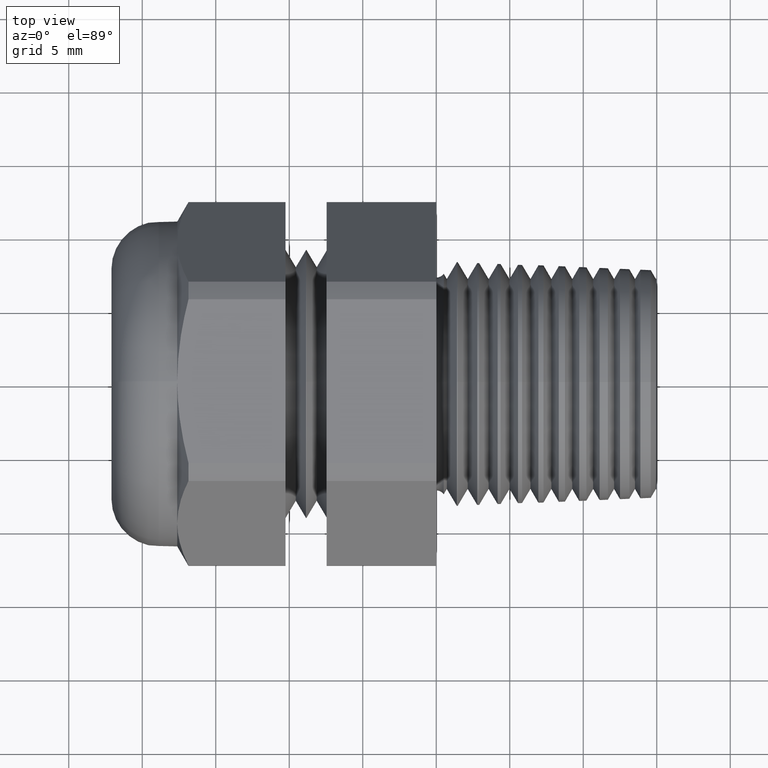
[diagram: clean part render]
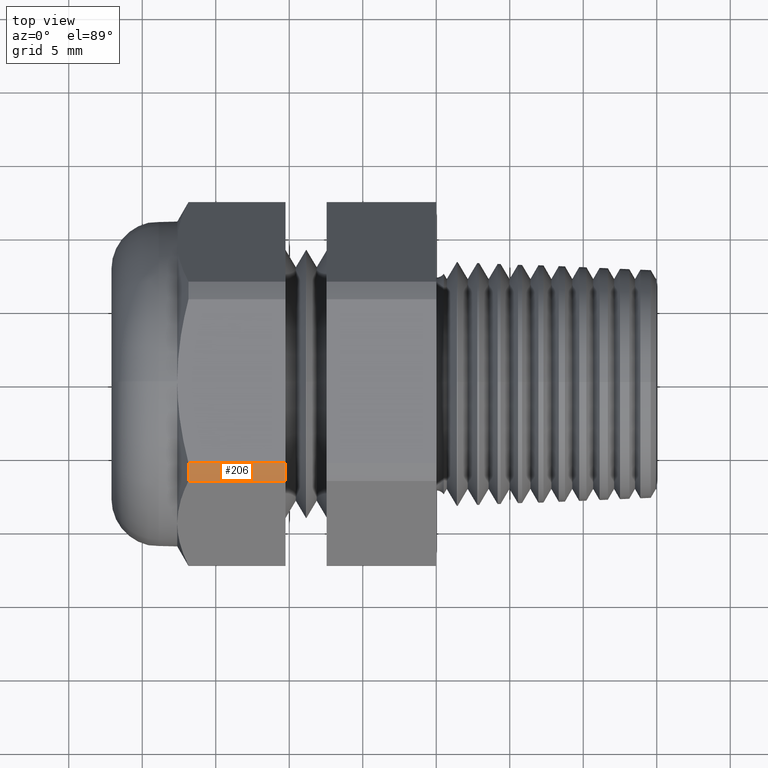
[diagram: same view with one face highlighted and labeled with its STEP entity id]
A machine part, top view. The second image highlights one B-rep face of the part: STEP entity #206.
In plain terms, the highlighted cylindrical surface (partial cylindrical patch) has radius 12.3749 mm, axis along (-1, 0, 0).
Its self-contained STEP definition (entity closure, byte-faithful):
#176 = VERTEX_POINT ( 'NONE', #1129 ) ;
#179 = EDGE_CURVE ( 'NONE', #194, #176, #1185, .T. ) ;
#183 = ORIENTED_EDGE ( 'NONE', *, *, #179, .F. ) ;
#186 = ORIENTED_EDGE ( 'NONE', *, *, #187, .T. ) ;
#187 = EDGE_CURVE ( 'NONE', #190, #176, #1175, .T. ) ;
#188 = ORIENTED_EDGE ( 'NONE', *, *, #189, .T. ) ;
#189 = EDGE_CURVE ( 'NONE', #195, #190, #1170, .T. ) ;
#190 = VERTEX_POINT ( 'NONE', #1166 ) ;
#194 = VERTEX_POINT ( 'NONE', #1159 ) ;
#195 = VERTEX_POINT ( 'NONE', #1158 ) ;
#196 = ORIENTED_EDGE ( 'NONE', *, *, #199, .F. ) ;
#198 = EDGE_LOOP ( 'NONE', ( #196, #188, #186, #183 ) ) ;
#199 = EDGE_CURVE ( 'NONE', #195, #194, #1216, .T. ) ;
#206 = ADVANCED_FACE ( 'NONE', ( #1196 ), #1195, .T. ) ;
#1129 = CARTESIAN_POINT ( 'NONE',  ( -0.4037499999999999400, -0.2194056517047817700, 0.4350000000000000000 ) ) ;
#1158 = CARTESIAN_POINT ( 'NONE',  ( -0.6636123159483016100, -0.2670182247938398500, 0.4075108681102215200 ) ) ;
#1159 = CARTESIAN_POINT ( 'NONE',  ( -0.6636123159483016100, -0.2194056517047817100, 0.4349999999999999400 ) ) ;
#1166 = CARTESIAN_POINT ( 'NONE',  ( -0.4037500000000000500, -0.2670182247938398000, 0.4075108681102215200 ) ) ;
#1167 = DIRECTION ( 'NONE',  ( 1.000000000000000000, 0.0000000000000000000, 0.0000000000000000000 ) ) ;
#1168 = VECTOR ( 'NONE', #1167, 39.37007874015748100 ) ;
#1169 = CARTESIAN_POINT ( 'NONE',  ( -2.085539792128106900, -0.2670182247938398000, 0.4075108681102215200 ) ) ;
#1170 = LINE ( 'NONE', #1169, #1168 ) ;
#1171 = DIRECTION ( 'NONE',  ( 0.0000000000000000000, 0.0000000000000000000, 1.000000000000000000 ) ) ;
#1172 = DIRECTION ( 'NONE',  ( -1.000000000000000000, 0.0000000000000000000, 0.0000000000000000000 ) ) ;
#1173 = CARTESIAN_POINT ( 'NONE',  ( -0.4037499999999999400, 0.0000000000000000000, 0.0000000000000000000 ) ) ;
#1174 = AXIS2_PLACEMENT_3D ( 'NONE', #1173, #1172, #1171 ) ;
#1175 = CIRCLE ( 'NONE', #1174, 0.4872000000000000200 ) ;
#1182 = DIRECTION ( 'NONE',  ( 1.000000000000000000, 0.0000000000000000000, 0.0000000000000000000 ) ) ;
#1183 = VECTOR ( 'NONE', #1182, 39.37007874015748100 ) ;
#1184 = CARTESIAN_POINT ( 'NONE',  ( -2.085539792128106900, -0.2194056517047817700, 0.4350000000000000000 ) ) ;
#1185 = LINE ( 'NONE', #1184, #1183 ) ;
#1192 = DIRECTION ( 'NONE',  ( 0.0000000000000000000, 0.0000000000000000000, 1.000000000000000000 ) ) ;
#1193 = DIRECTION ( 'NONE',  ( -1.000000000000000000, 0.0000000000000000000, 0.0000000000000000000 ) ) ;
#1194 = AXIS2_PLACEMENT_3D ( 'NONE', #1201, #1193, #1192 ) ;
#1195 = CYLINDRICAL_SURFACE ( 'NONE', #1194, 0.4871999999999999100 ) ;
#1196 = FACE_OUTER_BOUND ( 'NONE', #198, .T. ) ;
#1201 = CARTESIAN_POINT ( 'NONE',  ( -0.7238591030180623300, 0.0000000000000000000, 0.0000000000000000000 ) ) ;
#1212 = DIRECTION ( 'NONE',  ( 0.0000000000000000000, -1.065814103640150300E-014, -1.000000000000000000 ) ) ;
#1213 = DIRECTION ( 'NONE',  ( -1.000000000000000000, 0.0000000000000000000, 0.0000000000000000000 ) ) ;
#1214 = CARTESIAN_POINT ( 'NONE',  ( -0.6636123159483016100, 0.0000000000000000000, 0.0000000000000000000 ) ) ;
#1215 = AXIS2_PLACEMENT_3D ( 'NONE', #1214, #1213, #1212 ) ;
#1216 = CIRCLE ( 'NONE', #1215, 0.4871999999999999100 ) ;